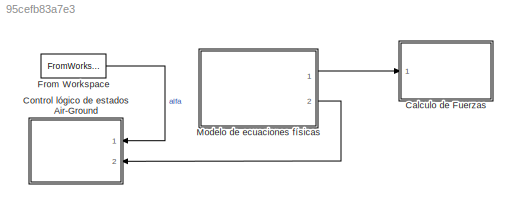
MODEL slx_95cefb83a7e3
KIND model
CONFIG AbsTol = auto
CONFIG EnableMultiTasking = off
CONFIG FixedStep = auto
CONFIG MaxStep = auto
CONFIG MinStep = auto
CONFIG RelTol = 1e-1
CONFIG SampleTimeConstraint = Unconstrained
CONFIG Solver = VariableStepAuto
CONFIG SolverName = VariableStepAuto
CONFIG StartTime = 0.0
CONFIG StopTime = ta
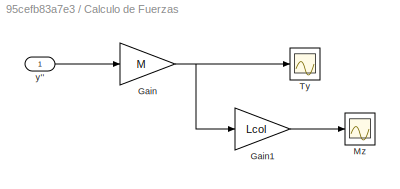
BLOCK [SubSystem] Calculo de Fuerzas
  Ports = [1]
  RequestExecContextInheritance = off
BLOCK [Gain] Calculo de Fuerzas/Gain
  Gain = M
  OutDataTypeStr = Inherit: Inherit via internal rule
  ParamDataTypeStr = Inherit: Inherit via internal rule
  SaturateOnIntegerOverflow = off
BLOCK [Gain] Calculo de Fuerzas/Gain1
  Gain = Lcol
  OutDataTypeStr = Inherit: Inherit via internal rule
  ParamDataTypeStr = Inherit: Inherit via internal rule
  SaturateOnIntegerOverflow = off
BLOCK [Scope] Calculo de Fuerzas/Mz
  Floating = off
  NumInputPorts = 1
  Ports = [1]
  ScopeSpecificationString = Simulink.scopes.TimeScopeBlockCfg('CurrentConfiguration', extmgr.ConfigurationSet(extmgr.Configuration('Core','General UI',true),extmgr.Configuration('Core','Source UI',true),extmgr.Configuration('Sources','WiredSimulink',true,'DataLoggingVariableName','Mz','DataLogging',true),extmgr.Configuration('Visuals','Time Domain',true,'SerializedDisplays',{struct('MinYLimReal','-2.0288','MaxYLimReal','2.87...<+1414ch>
BLOCK [Scope] Calculo de Fuerzas/Ty
  Floating = off
  NumInputPorts = 1
  Ports = [1]
  ScopeSpecificationString = Simulink.scopes.TimeScopeBlockCfg('CurrentConfiguration', extmgr.ConfigurationSet(extmgr.Configuration('Core','General UI',true),extmgr.Configuration('Core','Source UI',true),extmgr.Configuration('Sources','WiredSimulink',true,'DataLoggingVariableName','Ty','DataLogging',true),extmgr.Configuration('Visuals','Time Domain',true,'SerializedDisplays',{struct('MinYLimReal','-2.0288','MaxYLimReal','2.87...<+1414ch>
BLOCK [Inport] Calculo de Fuerzas/y''
  IconDisplay = Port number
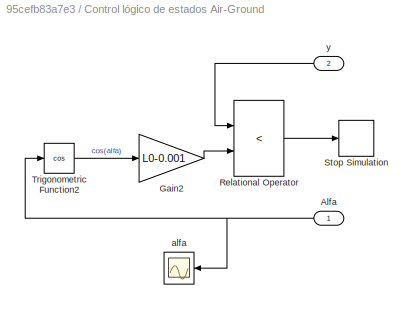
BLOCK [SubSystem] Control lógico de estados Air-Ground
  Ports = [2]
  RequestExecContextInheritance = off
BLOCK [Inport] Control lógico de estados Air-Ground/Alfa
  IconDisplay = Port number
BLOCK [Gain] Control lógico de estados Air-Ground/Gain2
  Gain = L0-0.001
  OutDataTypeStr = Inherit: Inherit via internal rule
  ParamDataTypeStr = Inherit: Inherit via internal rule
  SaturateOnIntegerOverflow = off
BLOCK [RelationalOperator] Control lógico de estados Air-Ground/Relational Operator
  InputSameDT = off
  Operator = <
  OutDataTypeStr = boolean
  Ports = [2, 1]
  RndMeth = Simplest
BLOCK [Stop] Control lógico de estados Air-Ground/Stop Simulation
BLOCK [Trigonometry] Control lógico de estados Air-Ground/Trigonometric Function2
  Operator = cos
  Ports = [1, 1]
BLOCK [Scope] Control lógico de estados Air-Ground/alfa
  Floating = off
  NumInputPorts = 1
  Ports = [1]
  ScopeSpecificationString = Simulink.scopes.TimeScopeBlockCfg('CurrentConfiguration', extmgr.ConfigurationSet(extmgr.Configuration('Core','General UI',true),extmgr.Configuration('Core','Source UI',true),extmgr.Configuration('Sources','WiredSimulink',true,'DataLoggingVariableName','ScopeData1'),extmgr.Configuration('Visuals','Time Domain',true,'SerializedDisplays',{struct('MinYLimReal','-1.00000','MaxYLimReal','1.00000','YLab...<+1386ch>
BLOCK [Inport] Control lógico de estados Air-Ground/y
  IconDisplay = Port number
  Port = 2
BLOCK [FromWorkspace] From Workspace
  SampleTime = 0
  VariableName = alfaAir
  ZeroCross = on
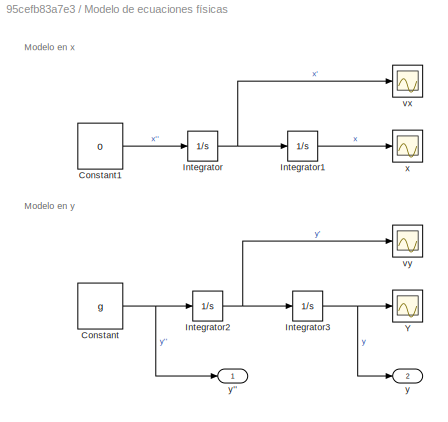
BLOCK [SubSystem] Modelo de ecuaciones físicas
  Ports = [0, 2]
  RequestExecContextInheritance = off
BLOCK [Constant] Modelo de ecuaciones físicas/Constant
  Value = g
BLOCK [Constant] Modelo de ecuaciones físicas/Constant1
  Value = 0
BLOCK [Integrator] Modelo de ecuaciones físicas/Integrator
  InitialCondition = vxSlipfinal
  Ports = [1, 1]
BLOCK [Integrator] Modelo de ecuaciones físicas/Integrator1
  InitialCondition = xSlipfinal
  Ports = [1, 1]
BLOCK [Integrator] Modelo de ecuaciones físicas/Integrator2
  InitialCondition = vySlipfinal
  Ports = [1, 1]
BLOCK [Integrator] Modelo de ecuaciones físicas/Integrator3
  InitialCondition = ySlipfinal
  Ports = [1, 1]
BLOCK [Scope] Modelo de ecuaciones físicas/Y
  Floating = off
  NumInputPorts = 1
  Ports = [1]
  ScopeSpecificationString = Simulink.scopes.TimeScopeBlockCfg('CurrentConfiguration', extmgr.ConfigurationSet(extmgr.Configuration('Core','General UI',true),extmgr.Configuration('Core','Source UI',true),extmgr.Configuration('Sources','WiredSimulink',true,'DataLogging',true,'DataLoggingVariableName','yairSlip'),extmgr.Configuration('Visuals','Time Domain',true,'SerializedDisplays',{struct('MinYLimReal','0.12227','MaxYLimReal'...<+1411ch>
BLOCK [Scope] Modelo de ecuaciones físicas/vx
  Floating = off
  NumInputPorts = 1
  Ports = [1]
  ScopeSpecificationString = Simulink.scopes.TimeScopeBlockCfg('CurrentConfiguration', extmgr.ConfigurationSet(extmgr.Configuration('Core','General UI',true),extmgr.Configuration('Core','Source UI',true),extmgr.Configuration('Sources','WiredSimulink',true,'DataLoggingVariableName','vxairSlip','DataLogging',true),extmgr.Configuration('Visuals','Time Domain',true,'SerializedDisplays',{struct('MinYLimReal','-1.00000','MaxYLimRea...<+1381ch>
BLOCK [Scope] Modelo de ecuaciones físicas/vy
  Floating = off
  NumInputPorts = 1
  Ports = [1]
  ScopeSpecificationString = Simulink.scopes.TimeScopeBlockCfg('CurrentConfiguration', extmgr.ConfigurationSet(extmgr.Configuration('Core','General UI',true),extmgr.Configuration('Core','Source UI',true),extmgr.Configuration('Sources','WiredSimulink',true,'DataLoggingVariableName','vyairSlip','DataLogging',true),extmgr.Configuration('Visuals','Time Domain',true,'SerializedDisplays',{struct('MinYLimReal','-2.0288','MaxYLimReal...<+1421ch>
BLOCK [Scope] Modelo de ecuaciones físicas/x
  Floating = off
  NumInputPorts = 1
  Ports = [1]
  ScopeSpecificationString = Simulink.scopes.TimeScopeBlockCfg('CurrentConfiguration', extmgr.ConfigurationSet(extmgr.Configuration('Core','General UI',true),extmgr.Configuration('Core','Source UI',true),extmgr.Configuration('Sources','WiredSimulink',true,'DataLogging',true,'DataLoggingVariableName','xairSlip'),extmgr.Configuration('Visuals','Time Domain',true,'SerializedDisplays',{struct('MinYLimReal','-1.00000','MaxYLimReal...<+1378ch>
BLOCK [Outport] Modelo de ecuaciones físicas/y
  IconDisplay = Port number
  Port = 2
BLOCK [Outport] Modelo de ecuaciones físicas/y''
  IconDisplay = Port number
ANNOTATION Modelo de ecuaciones físicas: Modelo en x
ANNOTATION Modelo de ecuaciones físicas: Modelo en y
LINE Calculo de Fuerzas/Gain1:1 -> Calculo de Fuerzas/Mz:1
NET Calculo de Fuerzas/Gain:1 -> Calculo de Fuerzas/Gain1:1, Calculo de Fuerzas/Ty:1
LINE Calculo de Fuerzas/y'':1 -> Calculo de Fuerzas/Gain:1
NET Control lógico de estados Air-Ground/Alfa:1 -> Control lógico de estados Air-Ground/Trigonometric Function2:1, Control lógico de estados Air-Ground/alfa:1
LINE Control lógico de estados Air-Ground/Gain2:1 -> Control lógico de estados Air-Ground/Relational Operator:2
LINE Control lógico de estados Air-Ground/Relational Operator:1 -> Control lógico de estados Air-Ground/Stop Simulation:1
LINE Control lógico de estados Air-Ground/Trigonometric Function2:1 -> Control lógico de estados Air-Ground/Gain2:1
LINE Control lógico de estados Air-Ground/y:1 -> Control lógico de estados Air-Ground/Relational Operator:1
LINE From Workspace:1 -> Control lógico de estados Air-Ground:1
LINE Modelo de ecuaciones físicas/Constant1:1 -> Modelo de ecuaciones físicas/Integrator:1
NET Modelo de ecuaciones físicas/Constant:1 -> Modelo de ecuaciones físicas/Integrator2:1, Modelo de ecuaciones físicas/y'':1
LINE Modelo de ecuaciones físicas/Integrator1:1 -> Modelo de ecuaciones físicas/x:1
NET Modelo de ecuaciones físicas/Integrator2:1 -> Modelo de ecuaciones físicas/Integrator3:1, Modelo de ecuaciones físicas/vy:1
NET Modelo de ecuaciones físicas/Integrator3:1 -> Modelo de ecuaciones físicas/Y:1, Modelo de ecuaciones físicas/y:1
NET Modelo de ecuaciones físicas/Integrator:1 -> Modelo de ecuaciones físicas/Integrator1:1, Modelo de ecuaciones físicas/vx:1
LINE Modelo de ecuaciones físicas:1 -> Calculo de Fuerzas:1
LINE Modelo de ecuaciones físicas:2 -> Control lógico de estados Air-Ground:2
note: NET lines group one-source signal fan-out (src -> all destinations, sorted); 1:1 wires keep LINE
